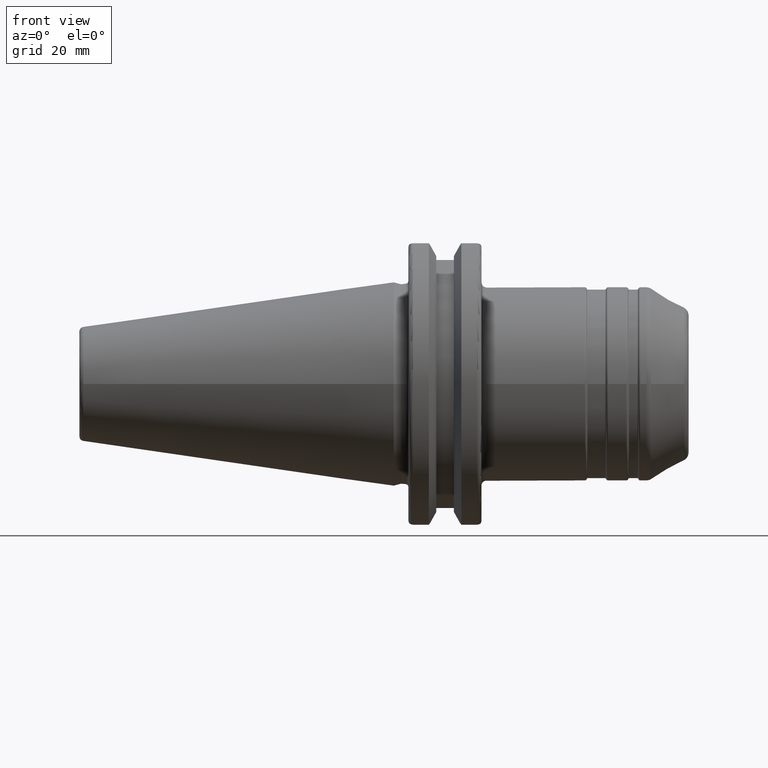
[diagram: clean part render]
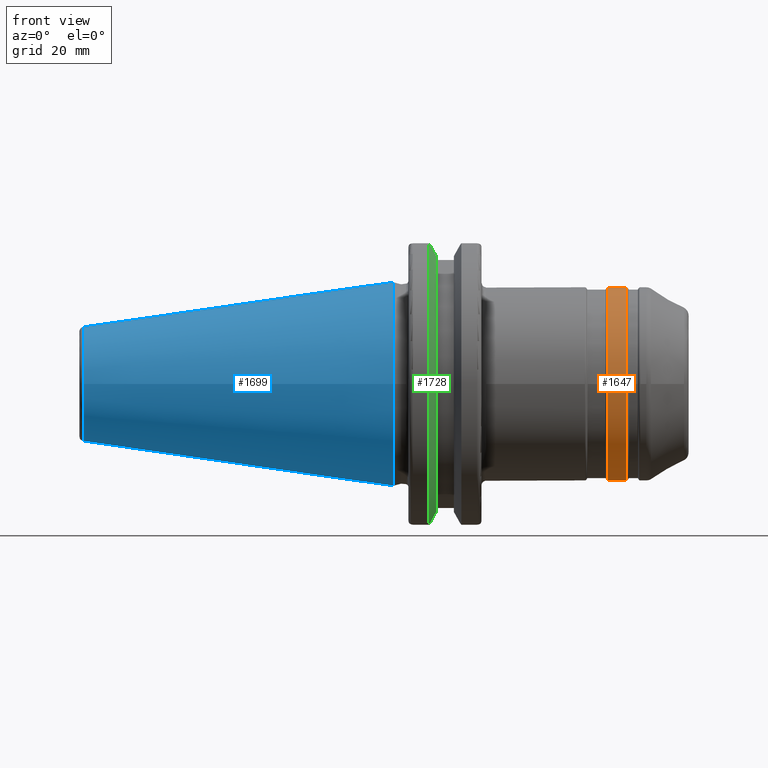
[diagram: same view with three faces highlighted in distinct colors, each labeled with its STEP entity id]
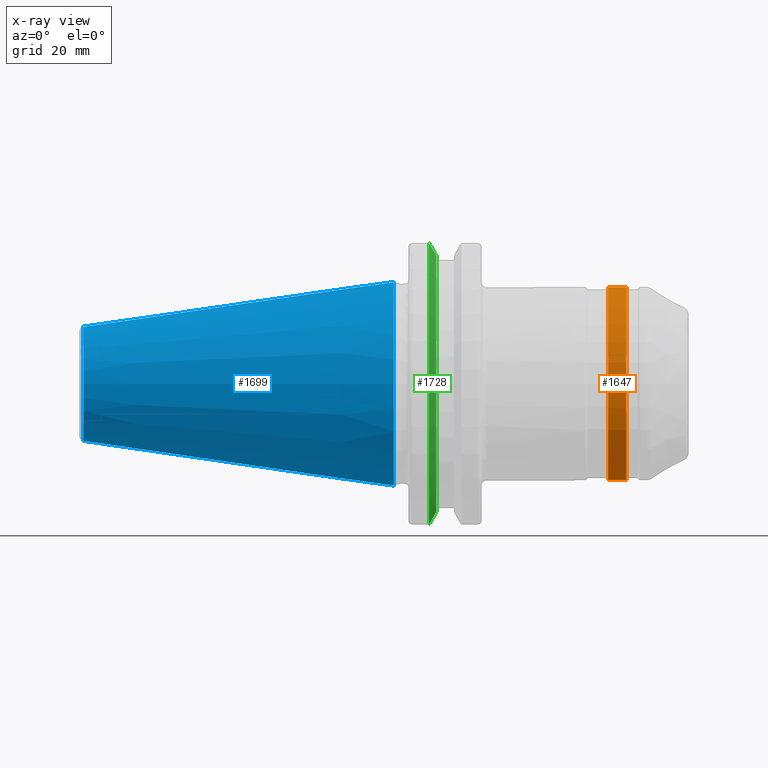
[diagram: x-ray of the same camera — body ghosted, the three highlighted faces saturated]
A machine part, front view with three faces highlighted in distinct colors.
The next image is the same camera in x-ray (body ghosted, the three faces saturated) — at least one of them is partly hidden behind the body in this view.
Their STEP definitions:

[orange] entity #1647 — the highlighted cylindrical surface (bore or boss wall) has radius 21 mm, axis along (1, 0, 0).
#145=LINE('',#2611,#237);
#237=VECTOR('',#2087,21.);
#325=CYLINDRICAL_SURFACE('',#1802,21.);
#365=FACE_OUTER_BOUND('',#461,.T.);
#461=EDGE_LOOP('',(#1177,#1178,#1179,#1180,#1181,#1182));
#594=CIRCLE('',#1800,21.);
#595=CIRCLE('',#1801,21.);
#596=CIRCLE('',#1803,21.);
#597=CIRCLE('',#1804,21.);
#697=VERTEX_POINT('',#2604);
#698=VERTEX_POINT('',#2606);
#699=VERTEX_POINT('',#2610);
#700=VERTEX_POINT('',#2612);
#881=EDGE_CURVE('',#697,#698,#594,.T.);
#882=EDGE_CURVE('',#698,#697,#595,.T.);
#883=EDGE_CURVE('',#698,#699,#145,.T.);
#884=EDGE_CURVE('',#700,#699,#596,.T.);
#885=EDGE_CURVE('',#699,#700,#597,.T.);
#1177=ORIENTED_EDGE('',*,*,#882,.F.);
#1178=ORIENTED_EDGE('',*,*,#883,.T.);
#1179=ORIENTED_EDGE('',*,*,#884,.F.);
#1180=ORIENTED_EDGE('',*,*,#885,.F.);
#1181=ORIENTED_EDGE('',*,*,#883,.F.);
#1182=ORIENTED_EDGE('',*,*,#881,.F.);
#1647=ADVANCED_FACE('',(#365),#325,.T.);
#1800=AXIS2_PLACEMENT_3D('',#2607,#2081,#2082);
#1801=AXIS2_PLACEMENT_3D('',#2608,#2083,#2084);
#1802=AXIS2_PLACEMENT_3D('',#2609,#2085,#2086);
#1803=AXIS2_PLACEMENT_3D('',#2613,#2088,#2089);
#1804=AXIS2_PLACEMENT_3D('',#2614,#2090,#2091);
#2081=DIRECTION('center_axis',(1.,0.,0.));
#2082=DIRECTION('ref_axis',(0.,-1.,1.83697019872103E-16));
#2083=DIRECTION('center_axis',(1.,0.,0.));
#2084=DIRECTION('ref_axis',(0.,-1.,1.83697019872103E-16));
#2085=DIRECTION('center_axis',(1.,0.,0.));
#2086=DIRECTION('ref_axis',(0.,1.,0.));
#2087=DIRECTION('',(-1.,0.,0.));
#2088=DIRECTION('center_axis',(-1.,0.,0.));
#2089=DIRECTION('ref_axis',(0.,-1.,1.83697019872103E-16));
#2090=DIRECTION('center_axis',(-1.,0.,0.));
#2091=DIRECTION('ref_axis',(0.,-1.,1.83697019872103E-16));
#2604=CARTESIAN_POINT('',(50.4803847577293,-2.57175827820944E-15,21.));
#2606=CARTESIAN_POINT('',(50.4803847577293,-21.,-2.57175827820944E-15));
#2607=CARTESIAN_POINT('Origin',(50.4803847577293,0.,0.));
#2608=CARTESIAN_POINT('Origin',(50.4803847577293,0.,0.));
#2609=CARTESIAN_POINT('Origin',(48.5,0.,0.));
#2610=CARTESIAN_POINT('',(46.5196152422707,-21.,-2.57175827820944E-15));
#2611=CARTESIAN_POINT('',(48.5,-21.,-2.57175827820944E-15));
#2612=CARTESIAN_POINT('',(46.5196152422707,-2.57175827820944E-15,21.));
#2613=CARTESIAN_POINT('Origin',(46.5196152422707,0.,0.));
#2614=CARTESIAN_POINT('Origin',(46.5196152422707,0.,0.));

[blue] entity #1699 — the highlighted conical surface has half-angle 8.297 deg.
#130=CONICAL_SURFACE('',#1931,17.2484375,0.144812498238939);
#210=LINE('',#3179,#302);
#302=VECTOR('',#2412,17.2484375);
#417=FACE_OUTER_BOUND('',#527,.T.);
#527=EDGE_LOOP('',(#1478,#1479,#1480,#1481,#1482));
#648=CIRCLE('',#1925,12.3966635780937);
#649=CIRCLE('',#1926,12.3966635780937);
#653=CIRCLE('',#1932,22.225);
#820=VERTEX_POINT('',#3166);
#821=VERTEX_POINT('',#3167);
#824=VERTEX_POINT('',#3177);
#1052=EDGE_CURVE('',#820,#821,#648,.T.);
#1053=EDGE_CURVE('',#821,#820,#649,.T.);
#1057=EDGE_CURVE('',#824,#824,#653,.T.);
#1058=EDGE_CURVE('',#824,#821,#210,.T.);
#1478=ORIENTED_EDGE('',*,*,#1057,.F.);
#1479=ORIENTED_EDGE('',*,*,#1058,.T.);
#1480=ORIENTED_EDGE('',*,*,#1052,.F.);
#1481=ORIENTED_EDGE('',*,*,#1053,.F.);
#1482=ORIENTED_EDGE('',*,*,#1058,.F.);
#1699=ADVANCED_FACE('',(#417),#130,.T.);
#1925=AXIS2_PLACEMENT_3D('',#3168,#2396,#2397);
#1926=AXIS2_PLACEMENT_3D('',#3169,#2398,#2399);
#1931=AXIS2_PLACEMENT_3D('',#3176,#2408,#2409);
#1932=AXIS2_PLACEMENT_3D('',#3178,#2410,#2411);
#2396=DIRECTION('center_axis',(-1.,0.,0.));
#2397=DIRECTION('ref_axis',(0.,-1.,3.06161699786838E-17));
#2398=DIRECTION('center_axis',(-1.,0.,0.));
#2399=DIRECTION('ref_axis',(0.,-1.,3.06161699786838E-17));
#2408=DIRECTION('center_axis',(1.,0.,0.));
#2409=DIRECTION('ref_axis',(0.,1.,0.));
#2410=DIRECTION('center_axis',(1.,0.,0.));
#2411=DIRECTION('ref_axis',(0.,0.,-1.));
#2412=DIRECTION('',(-0.989532981063282,0.144306893071729,1.76724974695192E-17));
#3166=CARTESIAN_POINT('',(-67.3943068930717,-1.5181534371019E-15,12.3966635780937));
#3167=CARTESIAN_POINT('',(-67.3943068930718,-12.3966635780937,-1.5181534371019E-15));
#3168=CARTESIAN_POINT('Origin',(-67.3943068930717,0.,-1.89769179637738E-15));
#3169=CARTESIAN_POINT('Origin',(-67.3943068930717,0.,-1.89769179637738E-15));
#3176=CARTESIAN_POINT('Origin',(-34.125,0.,0.));
#3177=CARTESIAN_POINT('',(0.,-22.225,-2.72177751110499E-15));
#3178=CARTESIAN_POINT('Origin',(0.,0.,0.));
#3179=CARTESIAN_POINT('',(-34.125,-17.2484375,-2.11232437746682E-15));

[green] entity #1728 — the highlighted conical surface has half-angle 60 deg.
#18=(
BOUNDED_CURVE()
B_SPLINE_CURVE(2,(#3058,#3059,#3060),.UNSPECIFIED.,.F.,.F.)
B_SPLINE_CURVE_WITH_KNOTS((3,3),(0.,0.276549142796136),.UNSPECIFIED.)
CURVE()
GEOMETRIC_REPRESENTATION_ITEM()
RATIONAL_B_SPLINE_CURVE((1.,1.00095203903316,1.00031614444813))
REPRESENTATION_ITEM('')
);
#21=(
BOUNDED_CURVE()
B_SPLINE_CURVE(2,(#3086,#3087,#3088),.UNSPECIFIED.,.F.,.F.)
B_SPLINE_CURVE_WITH_KNOTS((3,3),(0.0550586467392022,0.33160778953585),
 .UNSPECIFIED.)
CURVE()
GEOMETRIC_REPRESENTATION_ITEM()
RATIONAL_B_SPLINE_CURVE((1.00031614445148,1.00095203904325,1.))
REPRESENTATION_ITEM('')
);
#22=(
BOUNDED_CURVE()
B_SPLINE_CURVE(2,(#3121,#3122,#3123),.UNSPECIFIED.,.F.,.F.)
B_SPLINE_CURVE_WITH_KNOTS((3,3),(0.,0.0639048713676282),.UNSPECIFIED.)
CURVE()
GEOMETRIC_REPRESENTATION_ITEM()
RATIONAL_B_SPLINE_CURVE((1.,1.00028444218284,1.00047644010574))
REPRESENTATION_ITEM('')
);
#23=(
BOUNDED_CURVE()
B_SPLINE_CURVE(2,(#3129,#3130,#3131),.UNSPECIFIED.,.F.,.F.)
B_SPLINE_CURVE_WITH_KNOTS((3,3),(0.329353533631205,0.393258405001025),
 .UNSPECIFIED.)
CURVE()
GEOMETRIC_REPRESENTATION_ITEM()
RATIONAL_B_SPLINE_CURVE((1.00047644010572,1.00028444218283,1.))
REPRESENTATION_ITEM('')
);
#137=CONICAL_SURFACE('',#1975,30.3546886482472,1.0471975511966);
#446=FACE_OUTER_BOUND('',#558,.T.);
#558=EDGE_LOOP('',(#1607,#1608,#1609,#1610,#1611,#1612));
#646=CIRCLE('',#1919,31.75);
#668=CIRCLE('',#1976,28.9593772964944);
#799=VERTEX_POINT('',#3055);
#800=VERTEX_POINT('',#3057);
#809=VERTEX_POINT('',#3083);
#810=VERTEX_POINT('',#3085);
#814=VERTEX_POINT('',#3119);
#815=VERTEX_POINT('',#3125);
#1023=EDGE_CURVE('',#800,#799,#18,.T.);
#1034=EDGE_CURVE('',#810,#809,#21,.T.);
#1042=EDGE_CURVE('',#814,#799,#22,.T.);
#1044=EDGE_CURVE('',#814,#815,#646,.T.);
#1045=EDGE_CURVE('',#810,#815,#23,.T.);
#1098=EDGE_CURVE('',#800,#809,#668,.T.);
#1607=ORIENTED_EDGE('',*,*,#1045,.F.);
#1608=ORIENTED_EDGE('',*,*,#1034,.T.);
#1609=ORIENTED_EDGE('',*,*,#1098,.F.);
#1610=ORIENTED_EDGE('',*,*,#1023,.T.);
#1611=ORIENTED_EDGE('',*,*,#1042,.F.);
#1612=ORIENTED_EDGE('',*,*,#1044,.T.);
#1728=ADVANCED_FACE('',(#446),#137,.T.);
#1919=AXIS2_PLACEMENT_3D('',#3127,#2383,#2384);
#1975=AXIS2_PLACEMENT_3D('',#3274,#2516,#2517);
#1976=AXIS2_PLACEMENT_3D('',#3275,#2518,#2519);
#2383=DIRECTION('center_axis',(1.,0.,0.));
#2384=DIRECTION('ref_axis',(0.,0.,-1.));
#2516=DIRECTION('center_axis',(-1.,0.,0.));
#2517=DIRECTION('ref_axis',(0.,-1.,-1.22464679914735E-16));
#2518=DIRECTION('center_axis',(1.,0.,0.));
#2519=DIRECTION('ref_axis',(0.,0.,-1.));
#3055=CARTESIAN_POINT('',(7.88668530351257,-8.19,30.1755016258903));
#3057=CARTESIAN_POINT('',(9.2191,-8.19,27.7771386827498));
#3058=CARTESIAN_POINT('Ctrl Pts',(9.2191,-8.19,27.7771386827498));
#3059=CARTESIAN_POINT('Ctrl Pts',(8.58046356152393,-8.19,28.9303689539705));
#3060=CARTESIAN_POINT('Ctrl Pts',(7.88668530351257,-8.19,30.1755016258903));
#3083=CARTESIAN_POINT('',(9.2191,-8.19,-27.7771386827498));
#3085=CARTESIAN_POINT('',(7.88668530351256,-8.19,-30.1755016258903));
#3086=CARTESIAN_POINT('Ctrl Pts',(7.88668530351256,-8.19,-30.1755016258903));
#3087=CARTESIAN_POINT('Ctrl Pts',(8.5804635615235,-8.19,-28.9303689539712));
#3088=CARTESIAN_POINT('Ctrl Pts',(9.2191,-8.19,-27.7771386827498));
#3119=CARTESIAN_POINT('',(7.60793323092436,-8.67204822802685,30.5427254764662));
#3121=CARTESIAN_POINT('Ctrl Pts',(7.60793323092436,-8.67204822802686,30.5427254764662));
#3122=CARTESIAN_POINT('Ctrl Pts',(7.74899148121626,-8.42917748262648,30.357706789263));
#3123=CARTESIAN_POINT('Ctrl Pts',(7.88668530351257,-8.19,30.1755016258903));
#3125=CARTESIAN_POINT('',(7.60793323092436,-8.67204822802685,-30.5427254764662));
#3127=CARTESIAN_POINT('Origin',(7.60793323092436,0.,0.));
#3129=CARTESIAN_POINT('Ctrl Pts',(7.88668530351256,-8.19,-30.1755016258903));
#3130=CARTESIAN_POINT('Ctrl Pts',(7.74899148121159,-8.42917748263467,-30.3577067892692));
#3131=CARTESIAN_POINT('Ctrl Pts',(7.60793323092435,-8.67204822802687,-30.5427254764662));
#3274=CARTESIAN_POINT('Origin',(8.41351661546218,0.,0.));
#3275=CARTESIAN_POINT('Origin',(9.2191,0.,0.));